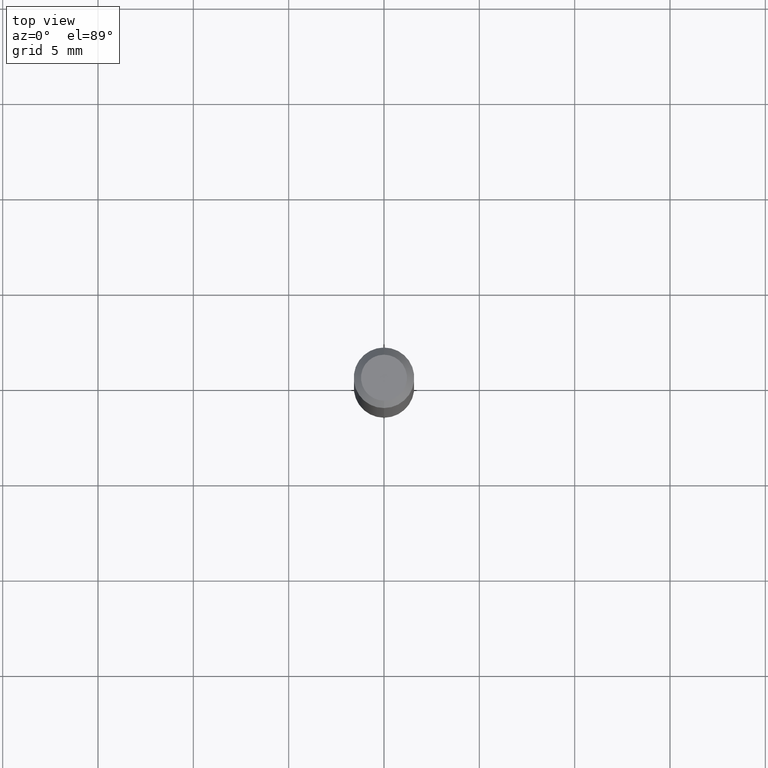
[diagram: clean part render]
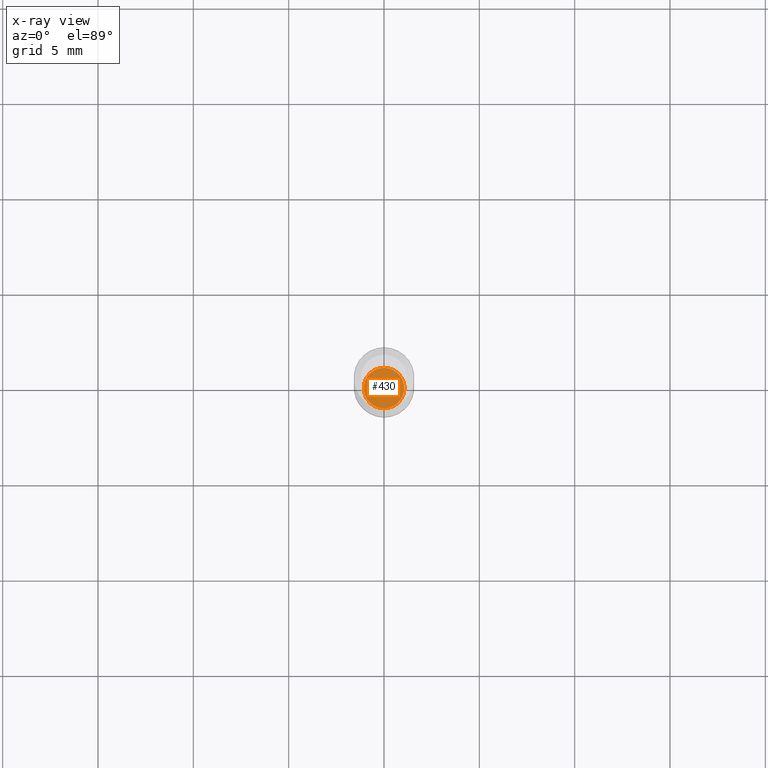
[diagram: x-ray — body ghosted, one internal face saturated and labeled with its STEP entity id]
A machine part, top view, then the same camera in x-ray: the body is ghosted and one INTERNAL B-rep face — a face not visible from any outside direction — is saturated and labeled: STEP entity #430.
In plain terms, the highlighted planar face has unit normal (-0, 0, 1).
Its self-contained STEP definition (entity closure, byte-faithful):
#17 = AXIS2_PLACEMENT_3D ( 'NONE', #120, #162, #442 ) ;
#49 = FACE_OUTER_BOUND ( 'NONE', #215, .T. ) ;
#54 = DIRECTION ( 'NONE',  ( -2.445401293886369650E-29, 3.491578020297540772E-15, 1.000000000000000000 ) ) ;
#69 = VERTEX_POINT ( 'NONE', #198 ) ;
#90 = PLANE ( 'NONE',  #398 ) ;
#100 = CARTESIAN_POINT ( 'NONE',  ( 3.002043058586724733E-16, 0.04199999999999565192, -1.245000000000000551 ) ) ;
#120 = CARTESIAN_POINT ( 'NONE',  ( 3.044524610888531721E-29, -4.347014635270438441E-15, -1.245000000000000329 ) ) ;
#162 = DIRECTION ( 'NONE',  ( -2.445401293886370211E-29, 3.491578020297540772E-15, 1.000000000000000000 ) ) ;
#198 = CARTESIAN_POINT ( 'NONE',  ( -2.932844324627926808E-16, -0.04200000000000434636, -1.244999999999999885 ) ) ;
#210 = DIRECTION ( 'NONE',  ( -6.982962677686265922E-15, -1.000000000000000000, 3.491578020297540772E-15 ) ) ;
#215 = EDGE_LOOP ( 'NONE', ( #437, #357 ) ) ;
#234 = CIRCLE ( 'NONE', #17, 0.04199999999999999567 ) ;
#238 = EDGE_CURVE ( 'NONE', #69, #354, #450, .T. ) ;
#249 = CARTESIAN_POINT ( 'NONE',  ( 3.044524610888531721E-29, -4.347014635270438441E-15, -1.245000000000000329 ) ) ;
#251 = AXIS2_PLACEMENT_3D ( 'NONE', #499, #494, #286 ) ;
#286 = DIRECTION ( 'NONE',  ( -6.982962677686265922E-15, -1.000000000000000000, 6.504399984914913214E-15 ) ) ;
#354 = VERTEX_POINT ( 'NONE', #100 ) ;
#357 = ORIENTED_EDGE ( 'NONE', *, *, #508, .F. ) ;
#398 = AXIS2_PLACEMENT_3D ( 'NONE', #249, #54, #210 ) ;
#430 = ADVANCED_FACE ( 'NONE', ( #49 ), #90, .F. ) ;
#437 = ORIENTED_EDGE ( 'NONE', *, *, #238, .F. ) ;
#442 = DIRECTION ( 'NONE',  ( -6.982962677686265922E-15, -1.000000000000000000, 6.504399984914913214E-15 ) ) ;
#450 = CIRCLE ( 'NONE', #251, 0.04199999999999999567 ) ;
#494 = DIRECTION ( 'NONE',  ( -2.445401293886370211E-29, 3.491578020297540772E-15, 1.000000000000000000 ) ) ;
#499 = CARTESIAN_POINT ( 'NONE',  ( 3.044524610888531721E-29, -4.347014635270438441E-15, -1.245000000000000329 ) ) ;
#508 = EDGE_CURVE ( 'NONE', #354, #69, #234, .T. ) ;